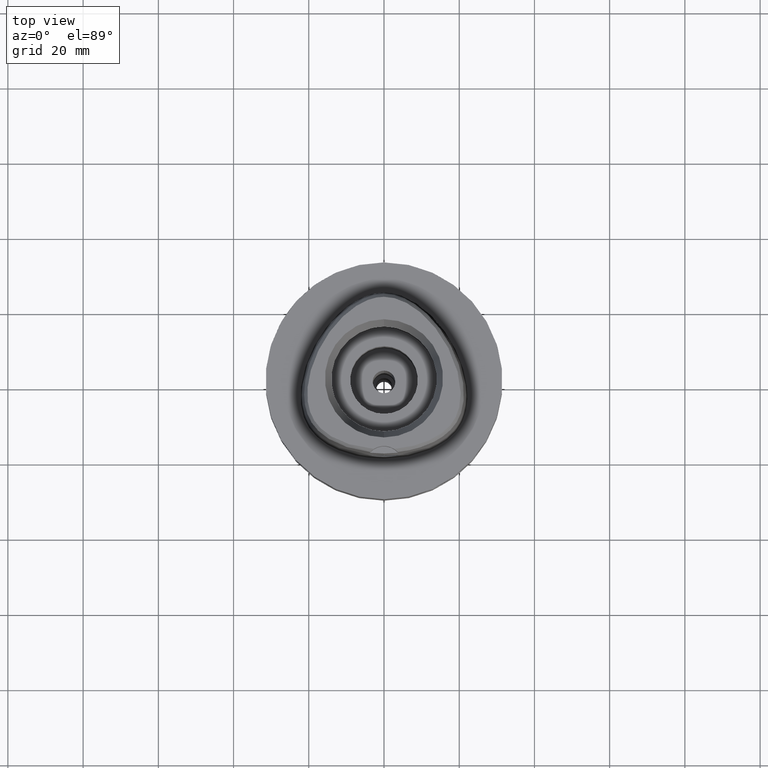
[diagram: clean part render]
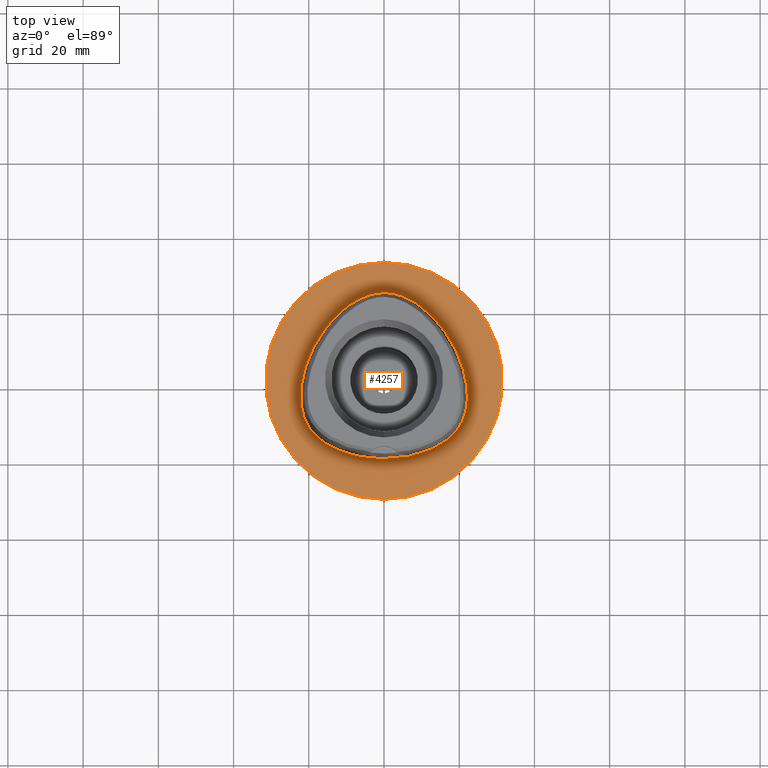
[diagram: same view with one face highlighted and labeled with its STEP entity id]
A machine part, top view. The second image highlights one B-rep face of the part: STEP entity #4257.
In plain terms, the highlighted planar face has unit normal (0, 0, -1).
Its self-contained STEP definition (entity closure, byte-faithful):
#6 = DIRECTION ( 'NONE',  ( 0.0000000000000000000, 0.0000000000000000000, -1.000000000000000000 ) ) ;
#53 = DIRECTION ( 'NONE',  ( 0.0000000000000000000, -1.000000000000000000, 0.0000000000000000000 ) ) ;
#108 = FACE_BOUND ( 'NONE', #4281, .T. ) ;
#180 = CARTESIAN_POINT ( 'NONE',  ( 10.74572894174404425, 19.17433597459553951, -1.927176603196134597E-06 ) ) ;
#226 = CARTESIAN_POINT ( 'NONE',  ( 18.06826692719778649, 10.43171877421476523, -1.927176603196134597E-06 ) ) ;
#291 = CARTESIAN_POINT ( 'NONE',  ( -19.64947365556884762, -12.82525390401577603, 1.516090832520342047E-07 ) ) ;
#319 = CARTESIAN_POINT ( 'NONE',  ( -18.06826688197366337, 10.43171874809906008, 1.516090832520342047E-07 ) ) ;
#403 = ORIENTED_EDGE ( 'NONE', *, *, #3910, .F. ) ;
#486 = DIRECTION ( 'NONE',  ( 0.0000000000000000000, 0.0000000000000000000, -1.000000000000000000 ) ) ;
#579 = CARTESIAN_POINT ( 'NONE',  ( 7.571159458760028826, 21.31457035420509882, -1.927176603196134597E-06 ) ) ;
#588 = CARTESIAN_POINT ( 'NONE',  ( 0.0000000000000000000, -31.50000000000000000, 0.0000000000000000000 ) ) ;
#602 = CARTESIAN_POINT ( 'NONE',  ( 14.67337966811591876, -17.21410160449569204, -1.927176603196134597E-06 ) ) ;
#623 = CARTESIAN_POINT ( 'NONE',  ( -6.993981376961000509E-12, -20.67499999999999716, 9.396187531743999603E-14 ) ) ;
#670 = CARTESIAN_POINT ( 'NONE',  ( -14.67337964231609782, -17.21410155919817697, 1.516090832520342047E-07 ) ) ;
#779 = DIRECTION ( 'NONE',  ( 0.0000000000000000000, 0.0000000000000000000, -1.000000000000000000 ) ) ;
#892 = EDGE_CURVE ( 'NONE', #1135, #1909, #3638, .T. ) ;
#913 = ORIENTED_EDGE ( 'NONE', *, *, #4775, .F. ) ;
#932 = FACE_OUTER_BOUND ( 'NONE', #1066, .T. ) ;
#952 = ORIENTED_EDGE ( 'NONE', *, *, #2279, .F. ) ;
#998 = CARTESIAN_POINT ( 'NONE',  ( -10.74572890813996118, 19.17433593458577334, 1.516090832520342047E-07 ) ) ;
#1005 = CARTESIAN_POINT ( 'NONE',  ( 21.55524830643922485, -8.996025404399054182, -1.927176603196134597E-06 ) ) ;
#1027 = CARTESIAN_POINT ( 'NONE',  ( 21.97832652556841992, -0.2810937415710342280, -1.927176603196134597E-06 ) ) ;
#1066 = EDGE_LOOP ( 'NONE', ( #952, #2895 ) ) ;
#1068 = CARTESIAN_POINT ( 'NONE',  ( -18.56841064866222268, -14.16937988020231920, 1.516090832520342047E-07 ) ) ;
#1135 = VERTEX_POINT ( 'NONE', #588 ) ;
#1318 = CARTESIAN_POINT ( 'NONE',  ( 4.293582668174999870E-11, 23.47499999999000053, 9.107529545341999115E-14 ) ) ;
#1395 = CARTESIAN_POINT ( 'NONE',  ( -21.55524825644420872, -8.996025389541506101, 1.516090832520342047E-07 ) ) ;
#1400 = CARTESIAN_POINT ( 'NONE',  ( 22.24453912687402735, -4.100468749717050443, -1.927176603196134597E-06 ) ) ;
#1440 = CARTESIAN_POINT ( 'NONE',  ( -2.564517726178084267, 23.29328124627052787, 1.516090832520342047E-07 ) ) ;
#1678 = CARTESIAN_POINT ( 'NONE',  ( 0.0000000000000000000, 1.224646799146999965E-14, 0.0000000000000000000 ) ) ;
#1695 = B_SPLINE_CURVE_WITH_KNOTS ( 'NONE', 3,
 ( #623, #2918, #3658, #2121, #602, #1791, #4371, #4783, #3292, #3628, #1005, #4341, #1400, #1027, #3682, #226, #2871, #180, #579, #2510, #3270, #4048, #4021 ),
 .UNSPECIFIED., .F., .F.,
 ( 4, 1, 1, 1, 1, 1, 1, 1, 1, 1, 1, 1, 1, 1, 1, 1, 1, 1, 1, 1, 4 ),
 ( 0.0000000000000000000, 0.08333333333339000559, 0.1666666666667000196, 0.2083333333333000081, 0.2500000000000000000, 0.2916666666666999919, 0.3125000000000000000, 0.3333333333332000326, 0.3541666666666000163, 0.3749999999998999689, 0.4166666666666000163, 0.4583333333332000326, 0.4999999999998999689, 0.5833333333331000015, 0.6666666666664999852, 0.7499999999998000488, 0.8333333333329999704, 0.8749999999997000177, 0.9166666666664000651, 0.9583333333329999704, 1.000000000000000000 ),
 .UNSPECIFIED. ) ;
#1791 = CARTESIAN_POINT ( 'NONE',  ( 16.95889175584688857, -15.67838870991039890, -1.927176603196134597E-06 ) ) ;
#1804 = CARTESIAN_POINT ( 'NONE',  ( -22.24453907474380898, -4.100468750021740938, 1.516090832520342047E-07 ) ) ;
#1838 = CARTESIAN_POINT ( 'NONE',  ( -14.40795638667350254, 15.64093749753958029, 1.516090832520342047E-07 ) ) ;
#1909 = VERTEX_POINT ( 'NONE', #1934 ) ;
#1934 = CARTESIAN_POINT ( 'NONE',  ( 0.0000000000000000000, 31.50000000000000000, 0.0000000000000000000 ) ) ;
#1966 = AXIS2_PLACEMENT_3D ( 'NONE', #3367, #6, #4811 ) ;
#2001 = DIRECTION ( 'NONE',  ( 0.0000000000000000000, -1.000000000000000000, 0.0000000000000000000 ) ) ;
#2121 = CARTESIAN_POINT ( 'NONE',  ( 11.23259758383291995, -18.89324223302706329, -1.927176603196134597E-06 ) ) ;
#2279 = EDGE_CURVE ( 'NONE', #1909, #1135, #4883, .T. ) ;
#2510 = CARTESIAN_POINT ( 'NONE',  ( 5.098437035267010309, 22.52602543554081649, -1.927176603196134597E-06 ) ) ;
#2528 = CARTESIAN_POINT ( 'NONE',  ( -11.23259756597050618, -18.89324218392132337, 1.516090832520342047E-07 ) ) ;
#2601 = CARTESIAN_POINT ( 'NONE',  ( -20.74942740520685547, 4.657187498707317630, 1.516090832520342047E-07 ) ) ;
#2664 = CARTESIAN_POINT ( 'NONE',  ( 0.0000000000000000000, 1.304861164492000018E-14, 0.0000000000000000000 ) ) ;
#2770 = VERTEX_POINT ( 'NONE', #3571 ) ;
#2816 = VERTEX_POINT ( 'NONE', #1318 ) ;
#2871 = CARTESIAN_POINT ( 'NONE',  ( 14.40795642659592346, 15.64093753126284270, -1.927176603196134597E-06 ) ) ;
#2895 = ORIENTED_EDGE ( 'NONE', *, *, #892, .F. ) ;
#2918 = CARTESIAN_POINT ( 'NONE',  ( 2.113823675931084445, -20.67500004816946557, -1.927176603196134597E-06 ) ) ;
#2958 = B_SPLINE_CURVE_WITH_KNOTS ( 'NONE', 3,
 ( #2963, #4064, #1440, #4462, #4847, #998, #1838, #319, #2601, #3649, #1804, #3331, #1395, #3356, #4800, #291, #1068, #3745, #670, #2528, #4015, #2999, #4822 ),
 .UNSPECIFIED., .F., .F.,
 ( 4, 1, 1, 1, 1, 1, 1, 1, 1, 1, 1, 1, 1, 1, 1, 1, 1, 1, 1, 1, 4 ),
 ( 0.0000000000000000000, 0.04166666666733000179, 0.08333333333395000209, 0.1250000000005999923, 0.1666666666672000086, 0.2500000000004999889, 0.3333333333337000215, 0.4166666666670000296, 0.5000000000001999512, 0.5416666666668999985, 0.5833333333335000148, 0.6250000000001000311, 0.6458333333333999837, 0.6666666666667999674, 0.6875000000001000311, 0.7083333333333000637, 0.7500000000000000000, 0.7916666666667000474, 0.8333333333332000326, 0.9166666666666000163, 1.000000000000000000 ),
 .UNSPECIFIED. ) ;
#2963 = CARTESIAN_POINT ( 'NONE',  ( 4.293582668174999870E-11, 23.47499999999000053, 9.107529545341999115E-14 ) ) ;
#2999 = CARTESIAN_POINT ( 'NONE',  ( -2.113823672838555545, -20.67499999620940088, 1.516090832520342047E-07 ) ) ;
#3084 = AXIS2_PLACEMENT_3D ( 'NONE', #2664, #779, #53 ) ;
#3270 = CARTESIAN_POINT ( 'NONE',  ( 2.564517736859126096, 23.29328129744406084, -1.927176603196134597E-06 ) ) ;
#3292 = CARTESIAN_POINT ( 'NONE',  ( 20.34961802736870951, -11.74885744600533855, -1.927176603196134597E-06 ) ) ;
#3331 = CARTESIAN_POINT ( 'NONE',  ( -22.05732873945438044, -6.847636718208110373, 1.516090832520342047E-07 ) ) ;
#3356 = CARTESIAN_POINT ( 'NONE',  ( -20.93173251864306650, -10.60431640471491299, 1.516090832520342047E-07 ) ) ;
#3367 = CARTESIAN_POINT ( 'NONE',  ( 0.0000000000000000000, 1.304861164492000018E-14, 0.0000000000000000000 ) ) ;
#3571 = CARTESIAN_POINT ( 'NONE',  ( -6.993981376961000509E-12, -20.67499999999999716, 9.396187531743999603E-14 ) ) ;
#3628 = CARTESIAN_POINT ( 'NONE',  ( 20.93173256620589839, -10.60431642587527890, -1.927176603196134597E-06 ) ) ;
#3638 = CIRCLE ( 'NONE', #3084, 31.50000000000000000 ) ;
#3649 = CARTESIAN_POINT ( 'NONE',  ( -21.97832647411087947, -0.2810937506630972194, 1.516090832520342047E-07 ) ) ;
#3658 = CARTESIAN_POINT ( 'NONE',  ( 6.341471027772257685, -20.29812504768791825, -1.927176603196135020E-06 ) ) ;
#3682 = CARTESIAN_POINT ( 'NONE',  ( 20.74942745438055880, 4.657187516426478879, -1.927176603196134597E-06 ) ) ;
#3745 = CARTESIAN_POINT ( 'NONE',  ( -16.95889172358566199, -15.67838866887873550, 1.516090832520342047E-07 ) ) ;
#3873 = AXIS2_PLACEMENT_3D ( 'NONE', #1678, #486, #2001 ) ;
#3875 = PLANE ( 'NONE',  #3873 ) ;
#3910 = EDGE_CURVE ( 'NONE', #2816, #2770, #2958, .T. ) ;
#4015 = CARTESIAN_POINT ( 'NONE',  ( -6.341471018537943038, -20.29812499625711197, 1.516090832520342047E-07 ) ) ;
#4021 = CARTESIAN_POINT ( 'NONE',  ( 4.293582668174999870E-11, 23.47499999999000053, 9.107529545341999115E-14 ) ) ;
#4048 = CARTESIAN_POINT ( 'NONE',  ( 0.8548392457222849794, 23.47500004818422426, -1.927176603196134597E-06 ) ) ;
#4064 = CARTESIAN_POINT ( 'NONE',  ( -0.8548392420360610977, 23.47499999621386735, 1.516090832520342047E-07 ) ) ;
#4257 = ADVANCED_FACE ( 'NONE', ( #932, #108 ), #3875, .F. ) ;
#4281 = EDGE_LOOP ( 'NONE', ( #403, #913 ) ) ;
#4341 = CARTESIAN_POINT ( 'NONE',  ( 22.05732879111688760, -6.847636725632370691, -1.927176603196134597E-06 ) ) ;
#4371 = CARTESIAN_POINT ( 'NONE',  ( 18.56841068651300475, -14.16937991604999780, -1.927176603196134597E-06 ) ) ;
#4462 = CARTESIAN_POINT ( 'NONE',  ( -5.098437015868814370, 22.52602538709230373, 1.516090832520342047E-07 ) ) ;
#4775 = EDGE_CURVE ( 'NONE', #2770, #2816, #1695, .T. ) ;
#4783 = CARTESIAN_POINT ( 'NONE',  ( 19.64947369767518737, -12.82525393462650953, -1.927176603196134597E-06 ) ) ;
#4800 = CARTESIAN_POINT ( 'NONE',  ( -20.34961798227869778, -11.74885741997219490, 1.516090832520342047E-07 ) ) ;
#4811 = DIRECTION ( 'NONE',  ( 0.0000000000000000000, 1.000000000000000000, 0.0000000000000000000 ) ) ;
#4822 = CARTESIAN_POINT ( 'NONE',  ( -6.993981376961000509E-12, -20.67499999999999716, 9.396187531743999603E-14 ) ) ;
#4847 = CARTESIAN_POINT ( 'NONE',  ( -7.571159432430608405, 21.31457030922217299, 1.516090832520342047E-07 ) ) ;
#4883 = CIRCLE ( 'NONE', #1966, 31.50000000000000000 ) ;